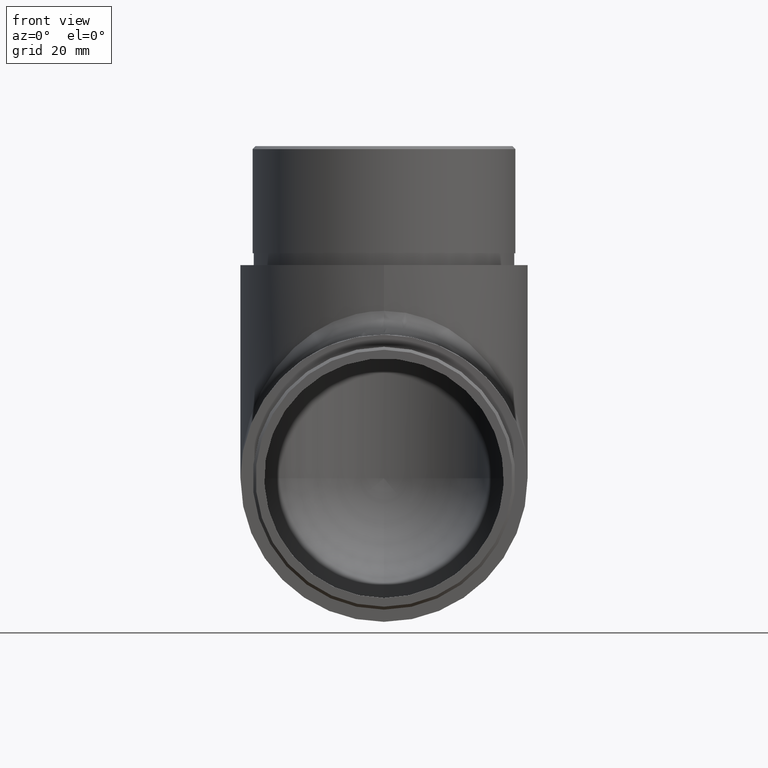
[diagram: clean part render]
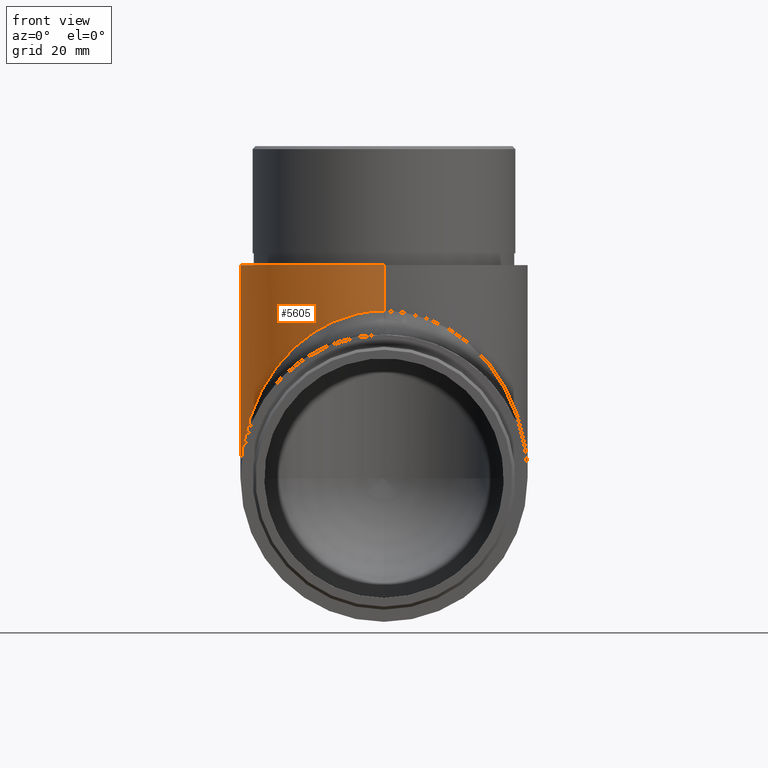
[diagram: same view with one face highlighted and labeled with its STEP entity id]
A machine part, front view. The second image highlights one B-rep face of the part: STEP entity #5605.
In plain terms, the highlighted cylindrical surface (partial cylindrical patch) has radius 24.15 mm, axis along (0, -0, 1).
Its self-contained STEP definition (entity closure, byte-faithful):
#304 = DIRECTION ( 'NONE',  ( -0.000000000000000000, 1.156482317317871478E-16, -1.000000000000000000 ) ) ;
#326 = CARTESIAN_POINT ( 'NONE',  ( -24.14999999999999858, 35.85000000000000853, 2.071742468689752315 ) ) ;
#334 = ORIENTED_EDGE ( 'NONE', *, *, #6886, .T. ) ;
#1064 = CARTESIAN_POINT ( 'NONE',  ( 3.469446951953614189E-15, 35.85000000000001563, 2.071742468689752315 ) ) ;
#1685 = ORIENTED_EDGE ( 'NONE', *, *, #8772, .T. ) ;
#1765 = VERTEX_POINT ( 'NONE', #6422 ) ;
#2372 = CARTESIAN_POINT ( 'NONE',  ( -24.14999999999999858, 35.85000000000000853, 24.14999999999999503 ) ) ;
#2477 = EDGE_LOOP ( 'NONE', ( #334, #1685, #6309, #2691 ) ) ;
#2691 = ORIENTED_EDGE ( 'NONE', *, *, #6067, .F. ) ;
#4336 = CARTESIAN_POINT ( 'NONE',  ( 3.469446951953614189E-15, 11.70000000000000284, 52.29999999999999716 ) ) ;
#4342 = CARTESIAN_POINT ( 'NONE',  ( -14.14674246868975160, 11.70000000000000284, 52.29999999999999716 ) ) ;
#4367 = CARTESIAN_POINT ( 'NONE',  ( -24.14999999999999858, 35.85000000000000853, 24.14999999999999503 ) ) ;
#4620 = FACE_OUTER_BOUND ( 'NONE', #2477, .T. ) ;
#5118 = CARTESIAN_POINT ( 'NONE',  ( 3.469446951953614189E-15, 11.70000000000000284, 52.29999999999999716 ) ) ;
#5225 = CARTESIAN_POINT ( 'NONE',  ( 3.469446951953614189E-15, 35.85000000000000853, 60.00000000000000000 ) ) ;
#5605 = ADVANCED_FACE ( 'NONE', ( #4620 ), #11130, .T. ) ;
#6067 = EDGE_CURVE ( 'NONE', #1765, #9508, #11416, .T. ) ;
#6309 = ORIENTED_EDGE ( 'NONE', *, *, #10457, .F. ) ;
#6397 = AXIS2_PLACEMENT_3D ( 'NONE', #1064, #11947, #9062 ) ;
#6422 = CARTESIAN_POINT ( 'NONE',  ( -24.14999999999999858, 35.85000000000000853, 60.00000000000000000 ) ) ;
#6435 = LINE ( 'NONE', #9479, #11369 ) ;
#6730 = VERTEX_POINT ( 'NONE', #4336 ) ;
#6886 = EDGE_CURVE ( 'NONE', #1765, #9118, #8013, .T. ) ;
#8013 = LINE ( 'NONE', #326, #9252 ) ;
#8217 = DIRECTION ( 'NONE',  ( 0.000000000000000000, -1.156482317317871478E-16, 1.000000000000000000 ) ) ;
#8772 = EDGE_CURVE ( 'NONE', #9118, #6730, #11280, .T. ) ;
#9062 = DIRECTION ( 'NONE',  ( 0.000000000000000000, -1.000000000000000000, -1.077467997501122326E-16 ) ) ;
#9118 = VERTEX_POINT ( 'NONE', #4367 ) ;
#9252 = VECTOR ( 'NONE', #12264, 1000.000000000000000 ) ;
#9274 = CARTESIAN_POINT ( 'NONE',  ( -24.15000000000000213, 21.70325753131025692, 40.63988821919736694 ) ) ;
#9479 = CARTESIAN_POINT ( 'NONE',  ( 3.469446951953614189E-15, 11.70000000000000284, 48.29999999999999716 ) ) ;
#9508 = VERTEX_POINT ( 'NONE', #12046 ) ;
#10457 = EDGE_CURVE ( 'NONE', #9508, #6730, #6435, .T. ) ;
#11130 = CYLINDRICAL_SURFACE ( 'NONE', #6397, 24.15000000000000213 ) ;
#11263 = AXIS2_PLACEMENT_3D ( 'NONE', #5225, #8217, #12138 ) ;
#11280 =( BOUNDED_CURVE ( )  B_SPLINE_CURVE ( 3, ( #2372, #9274, #4342, #5118 ),
 .UNSPECIFIED., .F., .T. ) 
 B_SPLINE_CURVE_WITH_KNOTS ( ( 4, 4 ),
 ( 4.712388980384689674, 6.283185307179586232 ),
 .UNSPECIFIED. ) 
 CURVE ( )  GEOMETRIC_REPRESENTATION_ITEM ( )  RATIONAL_B_SPLINE_CURVE ( ( 1.000000000000000000, 0.8047378541243649375, 0.8047378541243649375, 1.000000000000000000 ) ) 
 REPRESENTATION_ITEM ( '' )  );
#11369 = VECTOR ( 'NONE', #304, 1000.000000000000000 ) ;
#11416 = CIRCLE ( 'NONE', #11263, 24.15000000000000213 ) ;
#11947 = DIRECTION ( 'NONE',  ( 0.000000000000000000, -1.156482317317871478E-16, 1.000000000000000000 ) ) ;
#12046 = CARTESIAN_POINT ( 'NONE',  ( -3.469446951953614189E-15, 11.70000000000000107, 60.00000000000000000 ) ) ;
#12138 = DIRECTION ( 'NONE',  ( 0.000000000000000000, -1.000000000000000000, 0.000000000000000000 ) ) ;
#12264 = DIRECTION ( 'NONE',  ( -0.000000000000000000, 1.156482317317871478E-16, -1.000000000000000000 ) ) ;